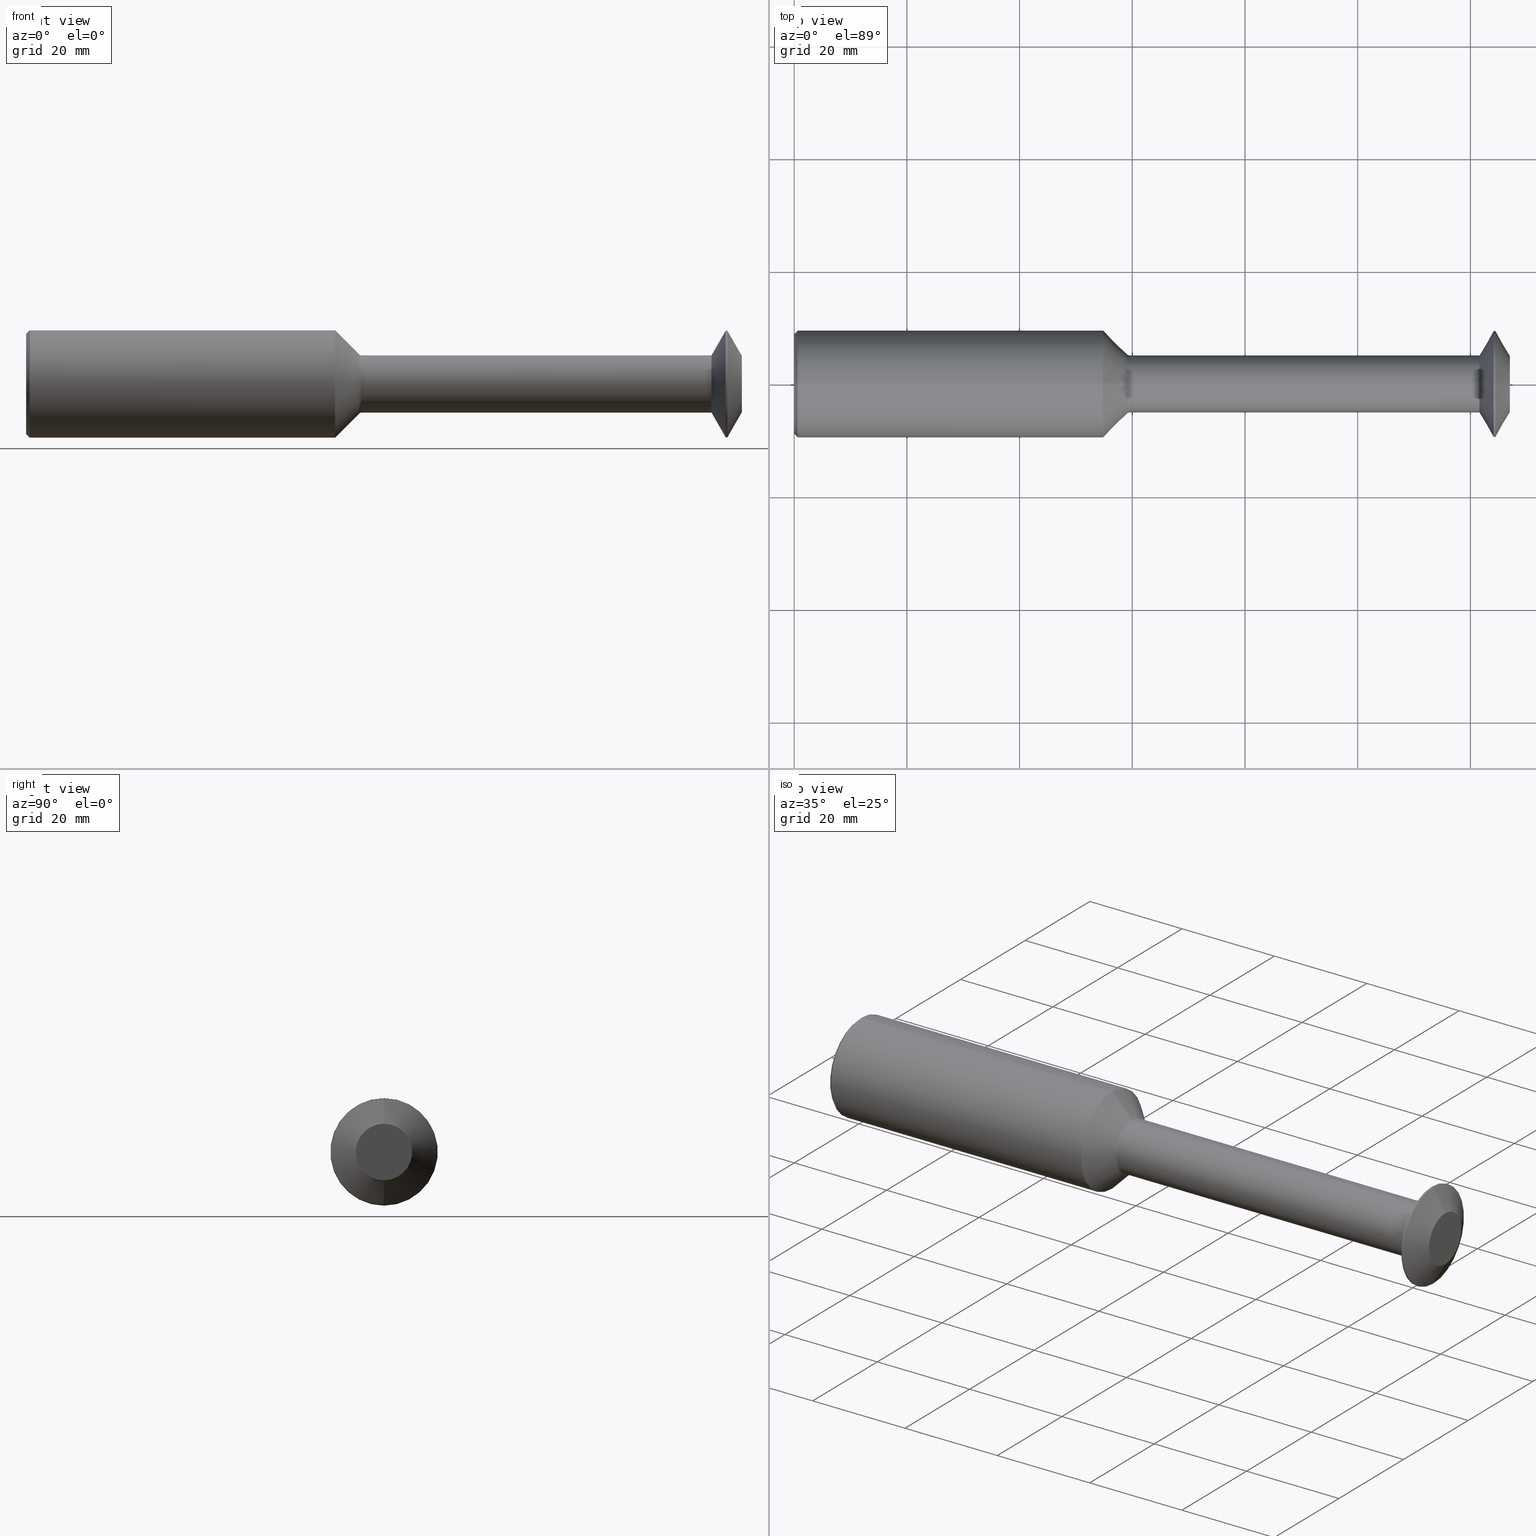
[diagram: canonical four-view strip — front | top / right | iso, engineering-drawing reading convention]
A machine part, canonical four-view strip (front | top / right | iso — engineering-drawing reading convention). The complete STEP part file that produces these views, byte-faithful:
ISO-10303-21;
HEADER;
FILE_DESCRIPTION (( 'STEP AP214' ),
    '1' );
FILE_NAME ('SPTM745L.STEP',
    '2019-04-23T21:00:58',
    ( '' ),
    ( '' ),
    'SwSTEP 2.0',
    'SolidWorks 2018',
    '' );
FILE_SCHEMA (( 'AUTOMOTIVE_DESIGN' ));
ENDSEC;

DATA;
#1 = DIRECTION ( 'NONE',  ( 0.0000000000000000000, 0.0000000000000000000, 1.000000000000000000 ) ) ;
#2 = AXIS2_PLACEMENT_3D ( 'NONE', #378, #339, #403 ) ;
#3 = DIRECTION ( 'NONE',  ( 0.0000000000000000000, 0.0000000000000000000, 1.000000000000000000 ) ) ;
#4 = LINE ( 'NONE', #458, #77 ) ;
#5 =( LENGTH_UNIT ( ) NAMED_UNIT ( * ) SI_UNIT ( $, .METRE. ) );
#6 = DIRECTION ( 'NONE',  ( -1.000000000000000000, -0.0000000000000000000, -0.0000000000000000000 ) ) ;
#7 = SURFACE_STYLE_USAGE ( .BOTH. , #11 ) ;
#8 = AXIS2_PLACEMENT_3D ( 'NONE', #224, #227, #111 ) ;
#9 = APPLICATION_CONTEXT ( 'automotive_design' ) ;
#10 = DIRECTION ( 'NONE',  ( 0.4977310399126148033, 0.0000000000000000000, -0.8673314314075716291 ) ) ;
#11 = SURFACE_SIDE_STYLE ('',( #60 ) ) ;
#12 = ORIENTED_EDGE ( 'NONE', *, *, #379, .T. ) ;
#13 = SHAPE_DEFINITION_REPRESENTATION ( #282, #491 ) ;
#14 = CARTESIAN_POINT ( 'NONE',  ( 0.0000000000000000000, 0.0000000000000000000, 0.0000000000000000000 ) ) ;
#15 = CYLINDRICAL_SURFACE ( 'NONE', #482, 0.3748500000000000165 ) ;
#16 = LENGTH_MEASURE_WITH_UNIT ( LENGTH_MEASURE( 0.02539999999999999897 ), #28 );
#17 =( CONVERSION_BASED_UNIT ( 'INCH', #16 ) LENGTH_UNIT ( ) NAMED_UNIT ( #108 ) );
#18 = DIRECTION ( 'NONE',  ( 0.0000000000000000000, 0.0000000000000000000, 1.000000000000000000 ) ) ;
#19 = EDGE_CURVE ( 'NONE', #98, #78, #461, .T. ) ;
#20 = VERTEX_POINT ( 'NONE', #35 ) ;
#21 = CARTESIAN_POINT ( 'NONE',  ( 0.02500000000000062589, 0.0000000000000000000, 0.3748500000000000165 ) ) ;
#22 = VERTEX_POINT ( 'NONE', #138 ) ;
#23 = ADVANCED_FACE ( 'NONE', ( #236 ), #428, .T. ) ;
#24 = ORIENTED_EDGE ( 'NONE', *, *, #354, .F. ) ;
#25 = AXIS2_PLACEMENT_3D ( 'NONE', #55, #292, #349 ) ;
#26 = CARTESIAN_POINT ( 'NONE',  ( 4.899286715156970118, 0.0000000000000000000, 0.0000000000000000000 ) ) ;
#27 = DIRECTION ( 'NONE',  ( -1.000000000000000000, -0.0000000000000000000, -0.0000000000000000000 ) ) ;
#28 =( LENGTH_UNIT ( ) NAMED_UNIT ( * ) SI_UNIT ( $, .METRE. ) );
#29 = LINE ( 'NONE', #308, #324 ) ;
#30 = DIRECTION ( 'NONE',  ( 0.0000000000000000000, 0.0000000000000000000, -1.000000000000000000 ) ) ;
#31 = FACE_OUTER_BOUND ( 'NONE', #268, .T. ) ;
#32 = CIRCLE ( 'NONE', #247, 0.1969999999999990925 ) ;
#33 = STYLED_ITEM ( 'NONE', ( #314 ), #177 ) ;
#34 = DIRECTION ( 'NONE',  ( -1.000000000000000000, -0.0000000000000000000, -0.0000000000000000000 ) ) ;
#35 = CARTESIAN_POINT ( 'NONE',  ( 2.343642054216297232, 0.0000000000000000000, 0.1999999999999989841 ) ) ;
#36 = EDGE_CURVE ( 'NONE', #217, #486, #32, .T. ) ;
#37 = CIRCLE ( 'NONE', #231, 0.3748500000000000165 ) ;
#38 = AXIS2_PLACEMENT_3D ( 'NONE', #52, #204, #146 ) ;
#39 = DIRECTION ( 'NONE',  ( -0.4977310399126148588, 1.062174661273174402E-16, -0.8673314314075714071 ) ) ;
#40 = EDGE_CURVE ( 'NONE', #486, #448, #194, .T. ) ;
#41 = EDGE_LOOP ( 'NONE', ( #176, #446, #471, #474 ) ) ;
#42 = ORIENTED_EDGE ( 'NONE', *, *, #465, .F. ) ;
#43 = CONICAL_SURFACE ( 'NONE', #38, 0.3498499999999995502, 0.7853981633974456145 ) ;
#44 = DIRECTION ( 'NONE',  ( -1.000000000000000000, 0.0000000000000000000, -0.0000000000000000000 ) ) ;
#45 = FACE_OUTER_BOUND ( 'NONE', #67, .T. ) ;
#46 = ORIENTED_EDGE ( 'NONE', *, *, #193, .T. ) ;
#47 = CARTESIAN_POINT ( 'NONE',  ( 2.325964384686633579, 0.0000000000000000000, 0.0000000000000000000 ) ) ;
#48 = CARTESIAN_POINT ( 'NONE',  ( 2.325964384686633579, 0.0000000000000000000, 0.0000000000000000000 ) ) ;
#49 = EDGE_LOOP ( 'NONE', ( #493, #281, #220, #208 ) ) ;
#50 = CARTESIAN_POINT ( 'NONE',  ( 2.325964384686633579, 0.0000000000000000000, 0.0000000000000000000 ) ) ;
#51 = PRESENTATION_LAYER_ASSIGNMENT (  '', '', ( #460 ) ) ;
#52 = CARTESIAN_POINT ( 'NONE',  ( 0.0000000000000000000, 0.0000000000000000000, 0.0000000000000000000 ) ) ;
#53 = CARTESIAN_POINT ( 'NONE',  ( 2.343642054216297232, 0.0000000000000000000, 0.0000000000000000000 ) ) ;
#54 = CARTESIAN_POINT ( 'NONE',  ( 5.000000000000000000, 2.412554194320274621E-17, -0.1969999999999990925 ) ) ;
#55 = CARTESIAN_POINT ( 'NONE',  ( 0.0000000000000000000, 0.0000000000000000000, 0.0000000000000000000 ) ) ;
#56 = FACE_OUTER_BOUND ( 'NONE', #331, .T. ) ;
#57 = DIRECTION ( 'NONE',  ( 0.0000000000000000000, 0.0000000000000000000, 1.000000000000000000 ) ) ;
#58 = ORIENTED_EDGE ( 'NONE', *, *, #175, .T. ) ;
#59 = VECTOR ( 'NONE', #300, 39.37007874015748854 ) ;
#60 = SURFACE_STYLE_FILL_AREA ( #386 ) ;
#61 = EDGE_CURVE ( 'NONE', #356, #206, #290, .T. ) ;
#62 = DIRECTION ( 'NONE',  ( -0.0000000000000000000, 1.000000000000000000, 1.224646799147353207E-16 ) ) ;
#63 = AXIS2_PLACEMENT_3D ( 'NONE', #333, #114, #394 ) ;
#64 = DIRECTION ( 'NONE',  ( 0.0000000000000000000, -1.224646799147352714E-16, 1.000000000000000000 ) ) ;
#65 = SURFACE_STYLE_FILL_AREA ( #401 ) ;
#66 = DIRECTION ( 'NONE',  ( 0.0000000000000000000, 0.0000000000000000000, 1.000000000000000000 ) ) ;
#67 = EDGE_LOOP ( 'NONE', ( #185, #251, #209, #418 ) ) ;
#68 = CARTESIAN_POINT ( 'NONE',  ( 2.325964384686633579, 0.0000000000000000000, 0.2073223304703355196 ) ) ;
#69 = DIRECTION ( 'NONE',  ( -1.000000000000000000, -0.0000000000000000000, -0.0000000000000000000 ) ) ;
#70 = DIRECTION ( 'NONE',  ( 0.0000000000000000000, 0.0000000000000000000, 1.000000000000000000 ) ) ;
#71 = DIRECTION ( 'NONE',  ( -1.000000000000000000, -0.0000000000000000000, -0.0000000000000000000 ) ) ;
#72 = DIRECTION ( 'NONE',  ( 0.0000000000000000000, 0.0000000000000000000, 1.000000000000000000 ) ) ;
#73 = ORIENTED_EDGE ( 'NONE', *, *, #272, .F. ) ;
#74 = VERTEX_POINT ( 'NONE', #183 ) ;
#75 = ORIENTED_EDGE ( 'NONE', *, *, #465, .T. ) ;
#76 = CARTESIAN_POINT ( 'NONE',  ( 2.158436715156969221, 0.0000000000000000000, 0.0000000000000000000 ) ) ;
#77 = VECTOR ( 'NONE', #383, 39.37007874015748143 ) ;
#78 = VERTEX_POINT ( 'NONE', #408 ) ;
#79 = EDGE_CURVE ( 'NONE', #248, #399, #419, .T. ) ;
#80 = DIRECTION ( 'NONE',  ( -0.7071067811865463515, 0.0000000000000000000, 0.7071067811865486830 ) ) ;
#81 = EDGE_CURVE ( 'NONE', #298, #99, #481, .T. ) ;
#82 = FACE_OUTER_BOUND ( 'NONE', #129, .T. ) ;
#83 = ORIENTED_EDGE ( 'NONE', *, *, #354, .T. ) ;
#84 = CARTESIAN_POINT ( 'NONE',  ( 4.899286715156970118, 0.0000000000000000000, 0.0000000000000000000 ) ) ;
#85 = LENGTH_MEASURE_WITH_UNIT ( LENGTH_MEASURE( 0.02539999999999999897 ), #5 );
#86 = FACE_OUTER_BOUND ( 'NONE', #328, .T. ) ;
#87 = FACE_OUTER_BOUND ( 'NONE', #158, .T. ) ;
#88 = DIRECTION ( 'NONE',  ( -1.000000000000000000, -0.0000000000000000000, -0.0000000000000000000 ) ) ;
#89 = TOROIDAL_SURFACE ( 'NONE', #307, 0.2249999999999990896, 0.02500000000000010547 ) ;
#91 = AXIS2_PLACEMENT_3D ( 'NONE', #48, #34, #1 ) ;
#90 = CARTESIAN_POINT ( 'NONE',  ( 0.0000000000000000000, 4.284426826817009961E-17, 0.3498499999999995502 ) ) ;
#92 = ORIENTED_EDGE ( 'NONE', *, *, #40, .T. ) ;
#93 = LINE ( 'NONE', #455, #288 ) ;
#94 = ORIENTED_EDGE ( 'NONE', *, *, #122, .F. ) ;
#95 = DIRECTION ( 'NONE',  ( -0.0000000000000000000, 0.0000000000000000000, 1.000000000000000000 ) ) ;
#97 = AXIS2_PLACEMENT_3D ( 'NONE', #250, #397, #415 ) ;
#96 = CARTESIAN_POINT ( 'NONE',  ( 5.000000000000000000, 3.487181760572077146E-17, -0.1969999999999990925 ) ) ;
#98 = VERTEX_POINT ( 'NONE', #363 ) ;
#99 = VERTEX_POINT ( 'NONE', #267 ) ;
#100 = ADVANCED_FACE ( 'NONE', ( #433 ), #369, .T. ) ;
#101 =( GEOMETRIC_REPRESENTATION_CONTEXT ( 3 ) GLOBAL_UNCERTAINTY_ASSIGNED_CONTEXT ( ( #325 ) ) GLOBAL_UNIT_ASSIGNED_CONTEXT ( ( #17, #301, #398 ) ) REPRESENTATION_CONTEXT ( 'NONE', 'WORKASPACE' ) );
#102 =( NAMED_UNIT ( * ) SI_UNIT ( $, .STERADIAN. ) SOLID_ANGLE_UNIT ( ) );
#103 = DIRECTION ( 'NONE',  ( -1.000000000000000000, -0.0000000000000000000, -0.0000000000000000000 ) ) ;
#104 = ORIENTED_EDGE ( 'NONE', *, *, #136, .T. ) ;
#105 = ORIENTED_EDGE ( 'NONE', *, *, #237, .T. ) ;
#106 = DIRECTION ( 'NONE',  ( -1.000000000000000000, -0.0000000000000000000, -0.0000000000000000000 ) ) ;
#107 = ORIENTED_EDGE ( 'NONE', *, *, #122, .T. ) ;
#108 = DIMENSIONAL_EXPONENTS ( 1.000000000000000000, 0.0000000000000000000, 0.0000000000000000000, 0.0000000000000000000, 0.0000000000000000000, 0.0000000000000000000, 0.0000000000000000000 ) ;
#109 = VECTOR ( 'NONE', #80, 39.37007874015748143 ) ;
#110 = APPLICATION_PROTOCOL_DEFINITION ( 'draft international standard', 'automotive_design', 1998, #373 ) ;
#111 = DIRECTION ( 'NONE',  ( 0.0000000000000000000, 0.0000000000000000000, -1.000000000000000000 ) ) ;
#112 = AXIS2_PLACEMENT_3D ( 'NONE', #437, #265, #143 ) ;
#113 = ORIENTED_EDGE ( 'NONE', *, *, #410, .F. ) ;
#114 = DIRECTION ( 'NONE',  ( -1.000000000000000000, -0.0000000000000000000, -0.0000000000000000000 ) ) ;
#115 = APPLICATION_PROTOCOL_DEFINITION ( 'draft international standard', 'automotive_design', 1998, #9 ) ;
#116 = ORIENTED_EDGE ( 'NONE', *, *, #362, .T. ) ;
#117 = ORIENTED_EDGE ( 'NONE', *, *, #498, .T. ) ;
#118 = CARTESIAN_POINT ( 'NONE',  ( 0.0000000000000000000, 0.0000000000000000000, 0.0000000000000000000 ) ) ;
#119 = ADVANCED_FACE ( 'NONE', ( #86 ), #371, .T. ) ;
#120 = PRODUCT_RELATED_PRODUCT_CATEGORY ( 'part', '', ( #195 ) ) ;
#121 = DIRECTION ( 'NONE',  ( -1.000000000000000000, -0.0000000000000000000, -0.0000000000000000000 ) ) ;
#122 = EDGE_CURVE ( 'NONE', #74, #312, #186, .T. ) ;
#123 = EDGE_LOOP ( 'NONE', ( #24, #184, #190, #313 ) ) ;
#124 = CARTESIAN_POINT ( 'NONE',  ( 2.325964384686633579, 0.0000000000000000000, 0.2073223304703354364 ) ) ;
#125 = CIRCLE ( 'NONE', #197, 0.3724999999999991096 ) ;
#126 = CYLINDRICAL_SURFACE ( 'NONE', #315, 0.3748500000000000165 ) ;
#127 = DIRECTION ( 'NONE',  ( 0.0000000000000000000, 0.0000000000000000000, 1.000000000000000000 ) ) ;
#128 = CONICAL_SURFACE ( 'NONE', #400, 0.1969999999999990925, 1.049815545074586076 ) ;
#129 = EDGE_LOOP ( 'NONE', ( #94, #75, #198, #390 ) ) ;
#130 = VERTEX_POINT ( 'NONE', #431 ) ;
#131 = DIRECTION ( 'NONE',  ( -1.000000000000000000, -0.0000000000000000000, -0.0000000000000000000 ) ) ;
#132 = PRESENTATION_LAYER_ASSIGNMENT (  '', '', ( #33 ) ) ;
#133 = DIRECTION ( 'NONE',  ( -1.000000000000000000, -0.0000000000000000000, -0.0000000000000000000 ) ) ;
#134 = ORIENTED_EDGE ( 'NONE', *, *, #278, .T. ) ;
#135 = DIRECTION ( 'NONE',  ( 0.0000000000000000000, 0.0000000000000000000, -1.000000000000000000 ) ) ;
#136 = EDGE_CURVE ( 'NONE', #206, #130, #476, .T. ) ;
#137 = ORIENTED_EDGE ( 'NONE', *, *, #175, .F. ) ;
#138 = CARTESIAN_POINT ( 'NONE',  ( 4.788295024926640941, 3.505551462559286787E-17, 0.1999999999999990952 ) ) ;
#139 = ORIENTED_EDGE ( 'NONE', *, *, #379, .F. ) ;
#140 = CIRCLE ( 'NONE', #150, 0.02500000000000010894 ) ;
#141 = DIRECTION ( 'NONE',  ( 1.000000000000000000, 0.0000000000000000000, 0.0000000000000000000 ) ) ;
#142 = CIRCLE ( 'NONE', #2, 0.3748500000000000165 ) ;
#143 = DIRECTION ( 'NONE',  ( 0.0000000000000000000, 0.0000000000000000000, -1.000000000000000000 ) ) ;
#144 = CARTESIAN_POINT ( 'NONE',  ( 0.0000000000000000000, 0.0000000000000000000, 0.3748500000000000165 ) ) ;
#145 = DIRECTION ( 'NONE',  ( 0.0000000000000000000, 0.0000000000000000000, 1.000000000000000000 ) ) ;
#146 = DIRECTION ( 'NONE',  ( 0.0000000000000000000, 0.0000000000000000000, -1.000000000000000000 ) ) ;
#147 = LENGTH_MEASURE_WITH_UNIT ( LENGTH_MEASURE( 0.02539999999999999897 ), #470 );
#148 = DIRECTION ( 'NONE',  ( 0.0000000000000000000, 0.0000000000000000000, 1.000000000000000000 ) ) ;
#149 = DIRECTION ( 'NONE',  ( -1.000000000000000000, -0.0000000000000000000, -0.0000000000000000000 ) ) ;
#150 = AXIS2_PLACEMENT_3D ( 'NONE', #266, #377, #426 ) ;
#151 = CONICAL_SURFACE ( 'NONE', #189, 0.2073223304703354364, 0.7853981633974499443 ) ;
#152 = CARTESIAN_POINT ( 'NONE',  ( 2.343642054216297232, 0.0000000000000000000, 0.0000000000000000000 ) ) ;
#153 = FACE_OUTER_BOUND ( 'NONE', #49, .T. ) ;
#154 = FACE_OUTER_BOUND ( 'NONE', #412, .T. ) ;
#155 = DIRECTION ( 'NONE',  ( -1.000000000000000000, -0.0000000000000000000, -0.0000000000000000000 ) ) ;
#156 = DIRECTION ( 'NONE',  ( 0.0000000000000000000, 0.0000000000000000000, 1.000000000000000000 ) ) ;
#157 = ORIENTED_EDGE ( 'NONE', *, *, #36, .F. ) ;
#158 = EDGE_LOOP ( 'NONE', ( #113, #58, #463, #414 ) ) ;
#159 = CIRCLE ( 'NONE', #421, 0.02500000000000010894 ) ;
#160 = CARTESIAN_POINT ( 'NONE',  ( 4.887286715156970551, 4.561809326823879979E-17, -0.3724999999999991096 ) ) ;
#161 = MECHANICAL_DESIGN_GEOMETRIC_PRESENTATION_REPRESENTATION (  '', ( #33 ), #101 ) ;
#162 = FACE_OUTER_BOUND ( 'NONE', #243, .T. ) ;
#163 = AXIS2_PLACEMENT_3D ( 'NONE', #47, #103, #145 ) ;
#164 = ORIENTED_EDGE ( 'NONE', *, *, #272, .T. ) ;
#165 = VECTOR ( 'NONE', #88, 39.37007874015748143 ) ;
#166 = ORIENTED_EDGE ( 'NONE', *, *, #436, .F. ) ;
#167 = ORIENTED_EDGE ( 'NONE', *, *, #336, .F. ) ;
#168 = DIRECTION ( 'NONE',  ( -1.000000000000000000, -0.0000000000000000000, -0.0000000000000000000 ) ) ;
#169 = PRODUCT_DEFINITION_CONTEXT ( 'detailed design', #9, 'design' ) ;
#170 = AXIS2_PLACEMENT_3D ( 'NONE', #118, #133, #66 ) ;
#171 = AXIS2_PLACEMENT_3D ( 'NONE', #76, #155, #18 ) ;
#172 = VECTOR ( 'NONE', #212, 39.37007874015748854 ) ;
#173 = FACE_OUTER_BOUND ( 'NONE', #41, .T. ) ;
#174 = AXIS2_PLACEMENT_3D ( 'NONE', #14, #148, #141 ) ;
#175 = EDGE_CURVE ( 'NONE', #22, #78, #29, .T. ) ;
#176 = ORIENTED_EDGE ( 'NONE', *, *, #193, .F. ) ;
#177 = MANIFOLD_SOLID_BREP ( '0258FA7F-1A45-4234-AD91-8D253D8E46C2-GAAFaceID9', #432 ) ;
#178 = DIRECTION ( 'NONE',  ( 0.0000000000000000000, 0.0000000000000000000, 1.000000000000000000 ) ) ;
#179 = CIRCLE ( 'NONE', #374, 0.3724999999999991096 ) ;
#180 = CIRCLE ( 'NONE', #429, 0.3724999999999991096 ) ;
#181 = FILL_AREA_STYLE_COLOUR ( '', #323 ) ;
#182 = PLANE ( 'NONE',  #483 ) ;
#183 = CARTESIAN_POINT ( 'NONE',  ( 0.0000000000000000000, 4.437507676710431854E-17, 0.3498499999999995502 ) ) ;
#184 = ORIENTED_EDGE ( 'NONE', *, *, #269, .T. ) ;
#185 = ORIENTED_EDGE ( 'NONE', *, *, #40, .F. ) ;
#186 = CIRCLE ( 'NONE', #346, 0.3498499999999995502 ) ;
#187 = DIRECTION ( 'NONE',  ( -1.000000000000000000, -0.0000000000000000000, -0.0000000000000000000 ) ) ;
#188 = UNCERTAINTY_MEASURE_WITH_UNIT (LENGTH_MEASURE( 1.000000000000000082E-05 ), #334, 'distance_accuracy_value', 'NONE');
#189 = AXIS2_PLACEMENT_3D ( 'NONE', #50, #472, #178 ) ;
#190 = ORIENTED_EDGE ( 'NONE', *, *, #364, .T. ) ;
#191 = ORIENTED_EDGE ( 'NONE', *, *, #364, .F. ) ;
#192 = VECTOR ( 'NONE', #187, 39.37007874015748143 ) ;
#193 = EDGE_CURVE ( 'NONE', #448, #399, #279, .T. ) ;
#194 = LINE ( 'NONE', #54, #213 ) ;
#195 = PRODUCT ( 'SPTM745L', 'SPTM745L', '', ( #425 ) ) ;
#196 = FACE_OUTER_BOUND ( 'NONE', #492, .T. ) ;
#197 = AXIS2_PLACEMENT_3D ( 'NONE', #219, #215, #210 ) ;
#198 = ORIENTED_EDGE ( 'NONE', *, *, #478, .F. ) ;
#199 = LINE ( 'NONE', #144, #203 ) ;
#200 = CONICAL_SURFACE ( 'NONE', #112, 0.3724999999999991096, 1.049815545074586298 ) ;
#201 = ADVANCED_FACE ( 'NONE', ( #310 ), #488, .T. ) ;
#202 = ORIENTED_EDGE ( 'NONE', *, *, #498, .F. ) ;
#203 = VECTOR ( 'NONE', #106, 39.37007874015748143 ) ;
#204 = DIRECTION ( 'NONE',  ( 1.000000000000000000, 0.0000000000000000000, 0.0000000000000000000 ) ) ;
#205 = CARTESIAN_POINT ( 'NONE',  ( 4.887286715156970551, 0.0000000000000000000, -0.3724999999999991096 ) ) ;
#206 = VERTEX_POINT ( 'NONE', #351 ) ;
#207 = PRESENTATION_STYLE_ASSIGNMENT (( #380 ) ) ;
#208 = ORIENTED_EDGE ( 'NONE', *, *, #269, .F. ) ;
#209 = ORIENTED_EDGE ( 'NONE', *, *, #276, .T. ) ;
#210 = DIRECTION ( 'NONE',  ( 0.0000000000000000000, 0.0000000000000000000, 1.000000000000000000 ) ) ;
#211 = LINE ( 'NONE', #332, #192 ) ;
#212 = DIRECTION ( 'NONE',  ( 0.7071067811865493491, 8.659560562354906974E-17, 0.7071067811865454633 ) ) ;
#213 = VECTOR ( 'NONE', #39, 39.37007874015748854 ) ;
#214 = CARTESIAN_POINT ( 'NONE',  ( 4.788295024926640941, 0.0000000000000000000, 0.0000000000000000000 ) ) ;
#215 = DIRECTION ( 'NONE',  ( -1.000000000000000000, -0.0000000000000000000, -0.0000000000000000000 ) ) ;
#216 = ORIENTED_EDGE ( 'NONE', *, *, #237, .F. ) ;
#217 = VERTEX_POINT ( 'NONE', #326 ) ;
#218 = CARTESIAN_POINT ( 'NONE',  ( 2.325964384686633579, 0.0000000000000000000, 0.0000000000000000000 ) ) ;
#219 = CARTESIAN_POINT ( 'NONE',  ( 4.887286715156970551, 0.0000000000000000000, 0.0000000000000000000 ) ) ;
#220 = ORIENTED_EDGE ( 'NONE', *, *, #375, .T. ) ;
#221 = ORIENTED_EDGE ( 'NONE', *, *, #225, .T. ) ;
#222 = AXIS2_PLACEMENT_3D ( 'NONE', #318, #317, #3 ) ;
#223 = CIRCLE ( 'NONE', #464, 0.3724999999999991096 ) ;
#224 = CARTESIAN_POINT ( 'NONE',  ( 4.887286715156970551, 0.0000000000000000000, 0.0000000000000000000 ) ) ;
#225 = EDGE_CURVE ( 'NONE', #248, #273, #211, .T. ) ;
#226 = CARTESIAN_POINT ( 'NONE',  ( 0.0000000000000000000, 0.0000000000000000000, 0.0000000000000000000 ) ) ;
#227 = DIRECTION ( 'NONE',  ( 1.000000000000000000, 0.0000000000000000000, 0.0000000000000000000 ) ) ;
#228 = UNCERTAINTY_MEASURE_WITH_UNIT (LENGTH_MEASURE( 1.000000000000000082E-05 ), #254, 'distance_accuracy_value', 'NONE');
#229 = CARTESIAN_POINT ( 'NONE',  ( 0.0000000000000000000, 0.0000000000000000000, 0.0000000000000000000 ) ) ;
#230 = DIRECTION ( 'NONE',  ( 0.0000000000000000000, 0.0000000000000000000, 1.000000000000000000 ) ) ;
#231 = AXIS2_PLACEMENT_3D ( 'NONE', #451, #6, #402 ) ;
#232 = CARTESIAN_POINT ( 'NONE',  ( 5.000000000000000000, 0.1969999999999990925, 0.0000000000000000000 ) ) ;
#233 = DIRECTION ( 'NONE',  ( 0.7071067811865493491, 0.0000000000000000000, -0.7071067811865454633 ) ) ;
#234 = ORIENTED_EDGE ( 'NONE', *, *, #375, .F. ) ;
#235 = ADVANCED_FACE ( 'NONE', ( #173 ), #495, .T. ) ;
#236 = FACE_OUTER_BOUND ( 'NONE', #500, .T. ) ;
#237 = EDGE_CURVE ( 'NONE', #356, #20, #140, .T. ) ;
#238 = ORIENTED_EDGE ( 'NONE', *, *, #81, .F. ) ;
#239 = CIRCLE ( 'NONE', #287, 0.1999999999999989841 ) ;
#240 =( GEOMETRIC_REPRESENTATION_CONTEXT ( 3 ) GLOBAL_UNCERTAINTY_ASSIGNED_CONTEXT ( ( #188 ) ) GLOBAL_UNIT_ASSIGNED_CONTEXT ( ( #334, #327, #442 ) ) REPRESENTATION_CONTEXT ( 'NONE', 'WORKASPACE' ) );
#241 = CARTESIAN_POINT ( 'NONE',  ( 0.0000000000000000000, 0.0000000000000000000, -0.3498499999999995502 ) ) ;
#242 = DIRECTION ( 'NONE',  ( -1.000000000000000000, -0.0000000000000000000, -0.0000000000000000000 ) ) ;
#243 = EDGE_LOOP ( 'NONE', ( #157, #345 ) ) ;
#244 = CARTESIAN_POINT ( 'NONE',  ( 2.343642054216297232, 0.0000000000000000000, 0.0000000000000000000 ) ) ;
#245 = CIRCLE ( 'NONE', #475, 0.1969999999999990925 ) ;
#247 = AXIS2_PLACEMENT_3D ( 'NONE', #494, #296, #57 ) ;
#246 = DIRECTION ( 'NONE',  ( 1.000000000000000000, 0.0000000000000000000, 0.0000000000000000000 ) ) ;
#248 = VERTEX_POINT ( 'NONE', #260 ) ;
#249 = EDGE_CURVE ( 'NONE', #312, #99, #93, .T. ) ;
#250 = CARTESIAN_POINT ( 'NONE',  ( 0.0000000000000000000, 0.0000000000000000000, 0.0000000000000000000 ) ) ;
#251 = ORIENTED_EDGE ( 'NONE', *, *, #404, .T. ) ;
#252 = DIRECTION ( 'NONE',  ( 0.0000000000000000000, 0.0000000000000000000, 1.000000000000000000 ) ) ;
#253 = ADVANCED_FACE ( 'NONE', ( #352 ), #15, .T. ) ;
#254 =( CONVERSION_BASED_UNIT ( 'INCH', #147 ) LENGTH_UNIT ( ) NAMED_UNIT ( #305 ) );
#255 = CONICAL_SURFACE ( 'NONE', #440, 0.3498499999999995502, 0.7853981633974456145 ) ;
#256 = VECTOR ( 'NONE', #262, 39.37007874015748143 ) ;
#257 = DIRECTION ( 'NONE',  ( 0.0000000000000000000, 0.0000000000000000000, 1.000000000000000000 ) ) ;
#258 =( GEOMETRIC_REPRESENTATION_CONTEXT ( 3 ) GLOBAL_UNCERTAINTY_ASSIGNED_CONTEXT ( ( #228 ) ) GLOBAL_UNIT_ASSIGNED_CONTEXT ( ( #254, #417, #102 ) ) REPRESENTATION_CONTEXT ( 'NONE', 'WORKASPACE' ) );
#259 = EDGE_LOOP ( 'NONE', ( #391, #92, #329, #387 ) ) ;
#260 = CARTESIAN_POINT ( 'NONE',  ( 4.788295024926640941, 0.0000000000000000000, -0.1999999999999990952 ) ) ;
#261 = CIRCLE ( 'NONE', #163, 0.2073223304703354364 ) ;
#262 = DIRECTION ( 'NONE',  ( -1.000000000000000000, -0.0000000000000000000, -0.0000000000000000000 ) ) ;
#263 = DIRECTION ( 'NONE',  ( 0.0000000000000000000, 0.0000000000000000000, -1.000000000000000000 ) ) ;
#264 = CARTESIAN_POINT ( 'NONE',  ( 5.000000000000000000, 0.0000000000000000000, 0.1969999999999990925 ) ) ;
#265 = DIRECTION ( 'NONE',  ( 1.000000000000000000, 0.0000000000000000000, 0.0000000000000000000 ) ) ;
#266 = CARTESIAN_POINT ( 'NONE',  ( 2.343642054216297232, 0.0000000000000000000, 0.2249999999999990896 ) ) ;
#267 = CARTESIAN_POINT ( 'NONE',  ( 0.02500000000000062589, 4.590588526603853748E-17, -0.3748500000000000165 ) ) ;
#268 = EDGE_LOOP ( 'NONE', ( #342, #83, #450, #191 ) ) ;
#269 = EDGE_CURVE ( 'NONE', #130, #501, #466, .T. ) ;
#270 = CONICAL_SURFACE ( 'NONE', #8, 0.3724999999999991096, 1.049815545074586298 ) ;
#271 = CARTESIAN_POINT ( 'NONE',  ( 4.887286715156970551, 0.0000000000000000000, 0.0000000000000000000 ) ) ;
#272 = EDGE_CURVE ( 'NONE', #22, #20, #4, .T. ) ;
#273 = VERTEX_POINT ( 'NONE', #420 ) ;
#274 = DIRECTION ( 'NONE',  ( 0.0000000000000000000, 0.0000000000000000000, 1.000000000000000000 ) ) ;
#275 = CARTESIAN_POINT ( 'NONE',  ( 5.000000000000000000, 0.0000000000000000000, 0.0000000000000000000 ) ) ;
#276 = EDGE_CURVE ( 'NONE', #217, #98, #467, .T. ) ;
#277 = DIRECTION ( 'NONE',  ( 0.0000000000000000000, 0.0000000000000000000, 1.000000000000000000 ) ) ;
#278 = EDGE_CURVE ( 'NONE', #206, #273, #159, .T. ) ;
#279 = LINE ( 'NONE', #286, #452 ) ;
#280 = CIRCLE ( 'NONE', #357, 0.1999999999999990952 ) ;
#281 = ORIENTED_EDGE ( 'NONE', *, *, #436, .T. ) ;
#282 = PRODUCT_DEFINITION_SHAPE ( 'NONE', 'NONE',  #350 ) ;
#283 = DIRECTION ( 'NONE',  ( -1.000000000000000000, -0.0000000000000000000, -0.0000000000000000000 ) ) ;
#284 = DIRECTION ( 'NONE',  ( 1.000000000000000000, 0.0000000000000000000, 0.0000000000000000000 ) ) ;
#285 = CARTESIAN_POINT ( 'NONE',  ( 0.0000000000000000000, 4.590588526603853748E-17, -0.3748500000000000165 ) ) ;
#286 = CARTESIAN_POINT ( 'NONE',  ( 0.0000000000000000000, 4.561809326823879979E-17, -0.3724999999999991096 ) ) ;
#287 = AXIS2_PLACEMENT_3D ( 'NONE', #468, #149, #127 ) ;
#288 = VECTOR ( 'NONE', #233, 39.37007874015748854 ) ;
#289 = EDGE_LOOP ( 'NONE', ( #337, #485, #164, #139 ) ) ;
#290 = CIRCLE ( 'NONE', #91, 0.2073223304703354364 ) ;
#291 = DIRECTION ( 'NONE',  ( 0.0000000000000000000, 0.0000000000000000000, -1.000000000000000000 ) ) ;
#292 = DIRECTION ( 'NONE',  ( -1.000000000000000000, -0.0000000000000000000, -0.0000000000000000000 ) ) ;
#293 = ADVANCED_FACE ( 'NONE', ( #31 ), #126, .T. ) ;
#294 = CARTESIAN_POINT ( 'NONE',  ( 0.0000000000000000000, 0.0000000000000000000, 0.0000000000000000000 ) ) ;
#295 = EDGE_CURVE ( 'NONE', #501, #130, #37, .T. ) ;
#296 = DIRECTION ( 'NONE',  ( -1.000000000000000000, -0.0000000000000000000, -0.0000000000000000000 ) ) ;
#297 = AXIS2_PLACEMENT_3D ( 'NONE', #430, #434, #423 ) ;
#298 = VERTEX_POINT ( 'NONE', #21 ) ;
#299 = COLOUR_RGB ( '',0.7529411764705882248, 0.7529411764705882248, 0.7529411764705882248 ) ;
#300 = DIRECTION ( 'NONE',  ( -0.4977310399126148588, 0.0000000000000000000, 0.8673314314075714071 ) ) ;
#301 =( NAMED_UNIT ( * ) PLANE_ANGLE_UNIT ( ) SI_UNIT ( $, .RADIAN. ) );
#302 = SURFACE_SIDE_STYLE ('',( #65 ) ) ;
#303 = DIRECTION ( 'NONE',  ( -1.000000000000000000, -0.0000000000000000000, -0.0000000000000000000 ) ) ;
#304 = DIRECTION ( 'NONE',  ( -0.7071067811865463515, 8.659560562354947649E-17, -0.7071067811865486830 ) ) ;
#305 = DIMENSIONAL_EXPONENTS ( 1.000000000000000000, 0.0000000000000000000, 0.0000000000000000000, 0.0000000000000000000, 0.0000000000000000000, 0.0000000000000000000, 0.0000000000000000000 ) ;
#306 = DIRECTION ( 'NONE',  ( -1.000000000000000000, -0.0000000000000000000, -0.0000000000000000000 ) ) ;
#307 = AXIS2_PLACEMENT_3D ( 'NONE', #152, #121, #381 ) ;
#308 = CARTESIAN_POINT ( 'NONE',  ( 4.887286715156970551, 4.561809326823879979E-17, 0.3724999999999991096 ) ) ;
#309 = DIMENSIONAL_EXPONENTS ( 1.000000000000000000, 0.0000000000000000000, 0.0000000000000000000, 0.0000000000000000000, 0.0000000000000000000, 0.0000000000000000000, 0.0000000000000000000 ) ;
#310 = FACE_OUTER_BOUND ( 'NONE', #259, .T. ) ;
#311 = EDGE_CURVE ( 'NONE', #399, #78, #223, .T. ) ;
#312 = VERTEX_POINT ( 'NONE', #241 ) ;
#313 = ORIENTED_EDGE ( 'NONE', *, *, #81, .T. ) ;
#314 = PRESENTATION_STYLE_ASSIGNMENT (( #7 ) ) ;
#315 = AXIS2_PLACEMENT_3D ( 'NONE', #226, #283, #335 ) ;
#316 = FACE_OUTER_BOUND ( 'NONE', #490, .T. ) ;
#317 = DIRECTION ( 'NONE',  ( -1.000000000000000000, -0.0000000000000000000, -0.0000000000000000000 ) ) ;
#318 = CARTESIAN_POINT ( 'NONE',  ( 5.000000000000000000, 0.0000000000000000000, 0.0000000000000000000 ) ) ;
#319 = LINE ( 'NONE', #124, #109 ) ;
#320 = ORIENTED_EDGE ( 'NONE', *, *, #295, .F. ) ;
#321 = AXIS2_PLACEMENT_3D ( 'NONE', #244, #131, #156 ) ;
#322 = CARTESIAN_POINT ( 'NONE',  ( 2.158436715156969221, 0.0000000000000000000, 0.3748500000000000165 ) ) ;
#323 = COLOUR_RGB ( '',0.7529411764705882248, 0.7529411764705882248, 0.7529411764705882248 ) ;
#324 = VECTOR ( 'NONE', #392, 39.37007874015748143 ) ;
#325 = UNCERTAINTY_MEASURE_WITH_UNIT (LENGTH_MEASURE( 1.000000000000000082E-05 ), #17, 'distance_accuracy_value', 'NONE');
#326 = CARTESIAN_POINT ( 'NONE',  ( 5.000000000000000000, 0.0000000000000000000, 0.1969999999999990925 ) ) ;
#327 =( NAMED_UNIT ( * ) PLANE_ANGLE_UNIT ( ) SI_UNIT ( $, .RADIAN. ) );
#328 = EDGE_LOOP ( 'NONE', ( #469, #221, #167, #73 ) ) ;
#329 = ORIENTED_EDGE ( 'NONE', *, *, #362, .F. ) ;
#330 = CARTESIAN_POINT ( 'NONE',  ( 5.000000000000000000, 0.0000000000000000000, 0.0000000000000000000 ) ) ;
#331 = EDGE_LOOP ( 'NONE', ( #117, #107 ) ) ;
#332 = CARTESIAN_POINT ( 'NONE',  ( 0.0000000000000000000, 2.449293598294694520E-17, -0.1999999999999990397 ) ) ;
#333 = CARTESIAN_POINT ( 'NONE',  ( 0.0000000000000000000, 0.0000000000000000000, 0.0000000000000000000 ) ) ;
#334 =( CONVERSION_BASED_UNIT ( 'INCH', #85 ) LENGTH_UNIT ( ) NAMED_UNIT ( #309 ) );
#335 = DIRECTION ( 'NONE',  ( 0.0000000000000000000, 0.0000000000000000000, 1.000000000000000000 ) ) ;
#336 = EDGE_CURVE ( 'NONE', #20, #273, #239, .T. ) ;
#337 = ORIENTED_EDGE ( 'NONE', *, *, #225, .F. ) ;
#338 = EDGE_CURVE ( 'NONE', #248, #22, #358, .T. ) ;
#339 = DIRECTION ( 'NONE',  ( 1.000000000000000000, 0.0000000000000000000, 0.0000000000000000000 ) ) ;
#340 = AXIS2_PLACEMENT_3D ( 'NONE', #479, #453, #441 ) ;
#341 = DIRECTION ( 'NONE',  ( -1.000000000000000000, -0.0000000000000000000, -0.0000000000000000000 ) ) ;
#342 = ORIENTED_EDGE ( 'NONE', *, *, #295, .T. ) ;
#343 = LINE ( 'NONE', #285, #165 ) ;
#344 = EDGE_CURVE ( 'NONE', #448, #98, #180, .T. ) ;
#345 = ORIENTED_EDGE ( 'NONE', *, *, #404, .F. ) ;
#346 = AXIS2_PLACEMENT_3D ( 'NONE', #294, #242, #291 ) ;
#347 = DIRECTION ( 'NONE',  ( -1.000000000000000000, -0.0000000000000000000, -0.0000000000000000000 ) ) ;
#348 = DIRECTION ( 'NONE',  ( 0.0000000000000000000, 0.0000000000000000000, 1.000000000000000000 ) ) ;
#349 = DIRECTION ( 'NONE',  ( 0.0000000000000000000, 0.0000000000000000000, 1.000000000000000000 ) ) ;
#350 = PRODUCT_DEFINITION ( 'UNKNOWN', '', #407, #169 ) ;
#351 = CARTESIAN_POINT ( 'NONE',  ( 2.325964384686633579, 2.538966284022662150E-17, -0.2073223304703355196 ) ) ;
#352 = FACE_OUTER_BOUND ( 'NONE', #123, .T. ) ;
#353 = DIRECTION ( 'NONE',  ( -1.000000000000000000, -0.0000000000000000000, -0.0000000000000000000 ) ) ;
#354 = EDGE_CURVE ( 'NONE', #130, #99, #343, .T. ) ;
#355 = CARTESIAN_POINT ( 'NONE',  ( 0.0000000000000000000, 0.0000000000000000000, 0.3724999999999991096 ) ) ;
#356 = VERTEX_POINT ( 'NONE', #68 ) ;
#357 = AXIS2_PLACEMENT_3D ( 'NONE', #214, #168, #230 ) ;
#358 = CIRCLE ( 'NONE', #297, 0.1999999999999990952 ) ;
#359 = ORIENTED_EDGE ( 'NONE', *, *, #61, .T. ) ;
#360 = CIRCLE ( 'NONE', #340, 0.3498499999999995502 ) ;
#361 = ORIENTED_EDGE ( 'NONE', *, *, #79, .T. ) ;
#362 = EDGE_CURVE ( 'NONE', #98, #448, #179, .T. ) ;
#363 = CARTESIAN_POINT ( 'NONE',  ( 4.899286715156970118, 0.0000000000000000000, 0.3724999999999991096 ) ) ;
#364 = EDGE_CURVE ( 'NONE', #501, #298, #199, .T. ) ;
#365 = DIRECTION ( 'NONE',  ( 0.0000000000000000000, 0.0000000000000000000, 1.000000000000000000 ) ) ;
#366 = DIRECTION ( 'NONE',  ( 1.000000000000000000, 0.0000000000000000000, 0.0000000000000000000 ) ) ;
#367 = AXIS2_PLACEMENT_3D ( 'NONE', #411, #366, #30 ) ;
#368 = ADVANCED_FACE ( 'NONE', ( #487 ), #43, .T. ) ;
#369 = CYLINDRICAL_SURFACE ( 'NONE', #25, 0.1999999999999990397 ) ;
#370 = EDGE_CURVE ( 'NONE', #78, #399, #125, .T. ) ;
#371 = CYLINDRICAL_SURFACE ( 'NONE', #170, 0.1999999999999990397 ) ;
#372 = ADVANCED_FACE ( 'NONE', ( #316 ), #270, .T. ) ;
#373 = APPLICATION_CONTEXT ( 'automotive_design' ) ;
#374 = AXIS2_PLACEMENT_3D ( 'NONE', #26, #69, #274 ) ;
#375 = EDGE_CURVE ( 'NONE', #356, #501, #319, .T. ) ;
#376 = CIRCLE ( 'NONE', #496, 0.1999999999999989841 ) ;
#377 = DIRECTION ( 'NONE',  ( 0.0000000000000000000, -1.000000000000000000, 0.0000000000000000000 ) ) ;
#378 = CARTESIAN_POINT ( 'NONE',  ( 0.02500000000000062589, 0.0000000000000000000, 0.0000000000000000000 ) ) ;
#379 = EDGE_CURVE ( 'NONE', #273, #20, #376, .T. ) ;
#380 = SURFACE_STYLE_USAGE ( .BOTH. , #302 ) ;
#381 = DIRECTION ( 'NONE',  ( 0.0000000000000000000, 0.0000000000000000000, 1.000000000000000000 ) ) ;
#382 = ADVANCED_FACE ( 'NONE', ( #439 ), #89, .F. ) ;
#383 = DIRECTION ( 'NONE',  ( -1.000000000000000000, -0.0000000000000000000, -0.0000000000000000000 ) ) ;
#384 = ORIENTED_EDGE ( 'NONE', *, *, #338, .F. ) ;
#385 = ADVANCED_FACE ( 'NONE', ( #45 ), #128, .T. ) ;
#386 = FILL_AREA_STYLE ('',( #181 ) ) ;
#387 = ORIENTED_EDGE ( 'NONE', *, *, #276, .F. ) ;
#388 = DIRECTION ( 'NONE',  ( -1.000000000000000000, -0.0000000000000000000, -0.0000000000000000000 ) ) ;
#389 = AXIS2_PLACEMENT_3D ( 'NONE', #218, #306, #252 ) ;
#390 = ORIENTED_EDGE ( 'NONE', *, *, #249, .F. ) ;
#391 = ORIENTED_EDGE ( 'NONE', *, *, #36, .T. ) ;
#392 = DIRECTION ( 'NONE',  ( 0.4977310399126148033, 1.062174661273174771E-16, 0.8673314314075716291 ) ) ;
#393 = VECTOR ( 'NONE', #304, 39.37007874015748143 ) ;
#394 = DIRECTION ( 'NONE',  ( 0.0000000000000000000, 0.0000000000000000000, 1.000000000000000000 ) ) ;
#395 = FILL_AREA_STYLE_COLOUR ( '', #299 ) ;
#396 = ORIENTED_EDGE ( 'NONE', *, *, #370, .F. ) ;
#397 = DIRECTION ( 'NONE',  ( -1.000000000000000000, -0.0000000000000000000, -0.0000000000000000000 ) ) ;
#398 =( NAMED_UNIT ( * ) SI_UNIT ( $, .STERADIAN. ) SOLID_ANGLE_UNIT ( ) );
#399 = VERTEX_POINT ( 'NONE', #160 ) ;
#400 = AXIS2_PLACEMENT_3D ( 'NONE', #275, #353, #257 ) ;
#401 = FILL_AREA_STYLE ('',( #395 ) ) ;
#402 = DIRECTION ( 'NONE',  ( 0.0000000000000000000, 0.0000000000000000000, 1.000000000000000000 ) ) ;
#403 = DIRECTION ( 'NONE',  ( 0.0000000000000000000, 0.0000000000000000000, -1.000000000000000000 ) ) ;
#404 = EDGE_CURVE ( 'NONE', #486, #217, #245, .T. ) ;
#405 = ORIENTED_EDGE ( 'NONE', *, *, #336, .T. ) ;
#406 = ORIENTED_EDGE ( 'NONE', *, *, #278, .F. ) ;
#407 = PRODUCT_DEFINITION_FORMATION_WITH_SPECIFIED_SOURCE ( 'ANY', '', #195, .NOT_KNOWN. ) ;
#408 = CARTESIAN_POINT ( 'NONE',  ( 4.887286715156970551, 0.0000000000000000000, 0.3724999999999991096 ) ) ;
#409 = CONICAL_SURFACE ( 'NONE', #389, 0.2073223304703354364, 0.7853981633974499443 ) ;
#410 = EDGE_CURVE ( 'NONE', #22, #248, #280, .T. ) ;
#411 = CARTESIAN_POINT ( 'NONE',  ( 0.02500000000000062589, 0.0000000000000000000, 0.0000000000000000000 ) ) ;
#412 = EDGE_LOOP ( 'NONE', ( #166, #134, #12, #216 ) ) ;
#413 = ORIENTED_EDGE ( 'NONE', *, *, #311, .T. ) ;
#414 = ORIENTED_EDGE ( 'NONE', *, *, #79, .F. ) ;
#415 = DIRECTION ( 'NONE',  ( 0.0000000000000000000, 0.0000000000000000000, 1.000000000000000000 ) ) ;
#416 = CARTESIAN_POINT ( 'NONE',  ( 2.325964384686633579, 2.538966284022660918E-17, -0.2073223304703354364 ) ) ;
#417 =( NAMED_UNIT ( * ) PLANE_ANGLE_UNIT ( ) SI_UNIT ( $, .RADIAN. ) );
#418 = ORIENTED_EDGE ( 'NONE', *, *, #344, .F. ) ;
#419 = LINE ( 'NONE', #205, #489 ) ;
#420 = CARTESIAN_POINT ( 'NONE',  ( 2.343642054216297232, 2.449293598294694212E-17, -0.1999999999999989841 ) ) ;
#421 = AXIS2_PLACEMENT_3D ( 'NONE', #454, #62, #64 ) ;
#422 = ORIENTED_EDGE ( 'NONE', *, *, #19, .F. ) ;
#423 = DIRECTION ( 'NONE',  ( 0.0000000000000000000, 0.0000000000000000000, 1.000000000000000000 ) ) ;
#424 = ORIENTED_EDGE ( 'NONE', *, *, #61, .F. ) ;
#425 = PRODUCT_CONTEXT ( 'NONE', #373, 'mechanical' ) ;
#426 = DIRECTION ( 'NONE',  ( 0.0000000000000000000, 0.0000000000000000000, -1.000000000000000000 ) ) ;
#427 = ADVANCED_FACE ( 'NONE', ( #196 ), #409, .T. ) ;
#428 = CYLINDRICAL_SURFACE ( 'NONE', #63, 0.3724999999999991096 ) ;
#429 = AXIS2_PLACEMENT_3D ( 'NONE', #84, #71, #70 ) ;
#430 = CARTESIAN_POINT ( 'NONE',  ( 4.788295024926640941, 0.0000000000000000000, 0.0000000000000000000 ) ) ;
#431 = CARTESIAN_POINT ( 'NONE',  ( 2.158436715156969221, 4.590588526603853748E-17, -0.3748500000000000165 ) ) ;
#432 = CLOSED_SHELL ( 'NONE', ( #445, #293, #427, #477, #119, #480, #23, #201, #484, #385, #235, #372, #100, #382, #462, #253, #456, #368 ) ) ;
#433 = FACE_OUTER_BOUND ( 'NONE', #289, .T. ) ;
#434 = DIRECTION ( 'NONE',  ( -1.000000000000000000, -0.0000000000000000000, -0.0000000000000000000 ) ) ;
#435 = TOROIDAL_SURFACE ( 'NONE', #321, 0.2249999999999990896, 0.02500000000000010547 ) ;
#436 = EDGE_CURVE ( 'NONE', #206, #356, #261, .T. ) ;
#437 = CARTESIAN_POINT ( 'NONE',  ( 4.887286715156970551, 0.0000000000000000000, 0.0000000000000000000 ) ) ;
#438 = PLANE ( 'NONE',  #457 ) ;
#439 = FACE_OUTER_BOUND ( 'NONE', #499, .T. ) ;
#440 = AXIS2_PLACEMENT_3D ( 'NONE', #444, #246, #135 ) ;
#441 = DIRECTION ( 'NONE',  ( 0.0000000000000000000, 0.0000000000000000000, -1.000000000000000000 ) ) ;
#442 =( NAMED_UNIT ( * ) SI_UNIT ( $, .STERADIAN. ) SOLID_ANGLE_UNIT ( ) );
#443 = EDGE_LOOP ( 'NONE', ( #42, #202, #459, #238 ) ) ;
#444 = CARTESIAN_POINT ( 'NONE',  ( 0.0000000000000000000, 0.0000000000000000000, 0.0000000000000000000 ) ) ;
#445 = ADVANCED_FACE ( 'NONE', ( #82 ), #255, .T. ) ;
#446 = ORIENTED_EDGE ( 'NONE', *, *, #344, .T. ) ;
#447 = MECHANICAL_DESIGN_GEOMETRIC_PRESENTATION_REPRESENTATION (  '', ( #460 ), #240 ) ;
#448 = VERTEX_POINT ( 'NONE', #473 ) ;
#449 = CARTESIAN_POINT ( 'NONE',  ( 0.0000000000000000000, 0.0000000000000000000, 0.0000000000000000000 ) ) ;
#450 = ORIENTED_EDGE ( 'NONE', *, *, #478, .T. ) ;
#451 = CARTESIAN_POINT ( 'NONE',  ( 2.158436715156969221, 0.0000000000000000000, 0.0000000000000000000 ) ) ;
#452 = VECTOR ( 'NONE', #347, 39.37007874015748143 ) ;
#453 = DIRECTION ( 'NONE',  ( -1.000000000000000000, -0.0000000000000000000, -0.0000000000000000000 ) ) ;
#454 = CARTESIAN_POINT ( 'NONE',  ( 2.343642054216297232, 2.755455298081533684E-17, -0.2249999999999990896 ) ) ;
#455 = CARTESIAN_POINT ( 'NONE',  ( 0.0000000000000000000, 0.0000000000000000000, -0.3498499999999995502 ) ) ;
#456 = ADVANCED_FACE ( 'NONE', ( #56 ), #438, .F. ) ;
#457 = AXIS2_PLACEMENT_3D ( 'NONE', #449, #284, #263 ) ;
#458 = CARTESIAN_POINT ( 'NONE',  ( 0.0000000000000000000, 0.0000000000000000000, 0.1999999999999990397 ) ) ;
#459 = ORIENTED_EDGE ( 'NONE', *, *, #249, .T. ) ;
#460 = STYLED_ITEM ( 'NONE', ( #207 ), #491 ) ;
#461 = LINE ( 'NONE', #355, #256 ) ;
#462 = ADVANCED_FACE ( 'NONE', ( #153 ), #151, .T. ) ;
#463 = ORIENTED_EDGE ( 'NONE', *, *, #370, .T. ) ;
#464 = AXIS2_PLACEMENT_3D ( 'NONE', #271, #388, #277 ) ;
#465 = EDGE_CURVE ( 'NONE', #74, #298, #497, .T. ) ;
#466 = CIRCLE ( 'NONE', #171, 0.3748500000000000165 ) ;
#467 = LINE ( 'NONE', #264, #59 ) ;
#468 = CARTESIAN_POINT ( 'NONE',  ( 2.343642054216297232, 0.0000000000000000000, 0.0000000000000000000 ) ) ;
#469 = ORIENTED_EDGE ( 'NONE', *, *, #410, .T. ) ;
#470 =( LENGTH_UNIT ( ) NAMED_UNIT ( * ) SI_UNIT ( $, .METRE. ) );
#471 = ORIENTED_EDGE ( 'NONE', *, *, #19, .T. ) ;
#472 = DIRECTION ( 'NONE',  ( -1.000000000000000000, -0.0000000000000000000, -0.0000000000000000000 ) ) ;
#473 = CARTESIAN_POINT ( 'NONE',  ( 4.899286715156970118, 4.561809326823879363E-17, -0.3724999999999991096 ) ) ;
#474 = ORIENTED_EDGE ( 'NONE', *, *, #311, .F. ) ;
#475 = AXIS2_PLACEMENT_3D ( 'NONE', #330, #303, #365 ) ;
#476 = LINE ( 'NONE', #416, #393 ) ;
#477 = ADVANCED_FACE ( 'NONE', ( #154 ), #435, .F. ) ;
#478 = EDGE_CURVE ( 'NONE', #99, #298, #142, .T. ) ;
#479 = CARTESIAN_POINT ( 'NONE',  ( 0.0000000000000000000, 0.0000000000000000000, 0.0000000000000000000 ) ) ;
#480 = ADVANCED_FACE ( 'NONE', ( #87 ), #200, .T. ) ;
#481 = CIRCLE ( 'NONE', #367, 0.3748500000000000165 ) ;
#482 = AXIS2_PLACEMENT_3D ( 'NONE', #229, #341, #72 ) ;
#483 = AXIS2_PLACEMENT_3D ( 'NONE', #232, #44, #95 ) ;
#484 = ADVANCED_FACE ( 'NONE', ( #162 ), #182, .F. ) ;
#485 = ORIENTED_EDGE ( 'NONE', *, *, #338, .T. ) ;
#486 = VERTEX_POINT ( 'NONE', #96 ) ;
#487 = FACE_OUTER_BOUND ( 'NONE', #443, .T. ) ;
#488 = CONICAL_SURFACE ( 'NONE', #222, 0.1969999999999990925, 1.049815545074586076 ) ;
#489 = VECTOR ( 'NONE', #10, 39.37007874015748143 ) ;
#490 = EDGE_LOOP ( 'NONE', ( #137, #384, #361, #413 ) ) ;
#491 = ADVANCED_BREP_SHAPE_REPRESENTATION ( 'SPTM745L', ( #177, #174 ), #258 ) ;
#492 = EDGE_LOOP ( 'NONE', ( #359, #104, #320, #234 ) ) ;
#493 = ORIENTED_EDGE ( 'NONE', *, *, #136, .F. ) ;
#494 = CARTESIAN_POINT ( 'NONE',  ( 5.000000000000000000, 0.0000000000000000000, 0.0000000000000000000 ) ) ;
#495 = CYLINDRICAL_SURFACE ( 'NONE', #97, 0.3724999999999991096 ) ;
#496 = AXIS2_PLACEMENT_3D ( 'NONE', #53, #27, #348 ) ;
#497 = LINE ( 'NONE', #90, #172 ) ;
#498 = EDGE_CURVE ( 'NONE', #312, #74, #360, .T. ) ;
#499 = EDGE_LOOP ( 'NONE', ( #406, #424, #105, #405 ) ) ;
#500 = EDGE_LOOP ( 'NONE', ( #116, #46, #396, #422 ) ) ;
#501 = VERTEX_POINT ( 'NONE', #322 ) ;
ENDSEC;
END-ISO-10303-21;
